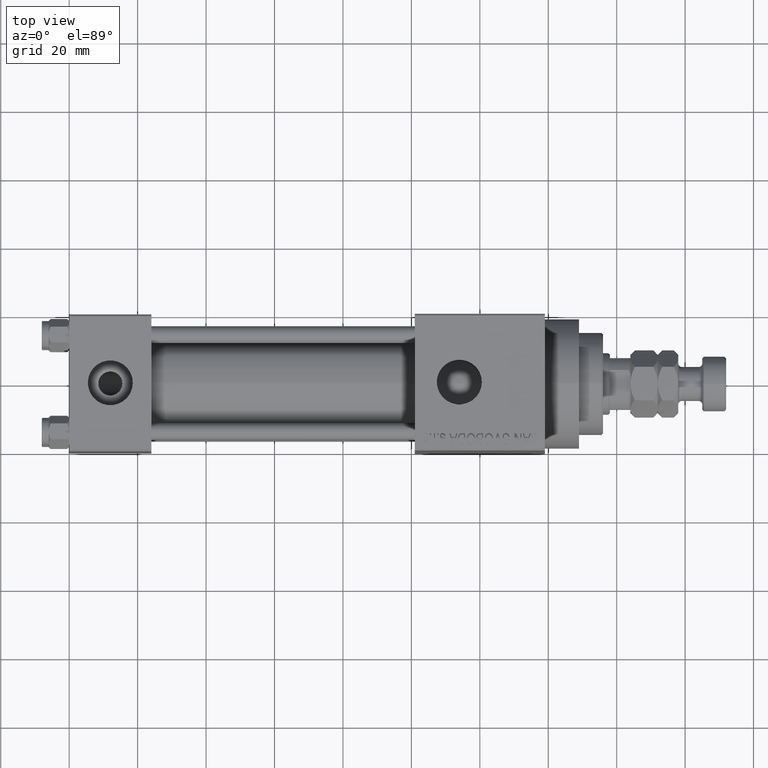
[diagram: clean part render]
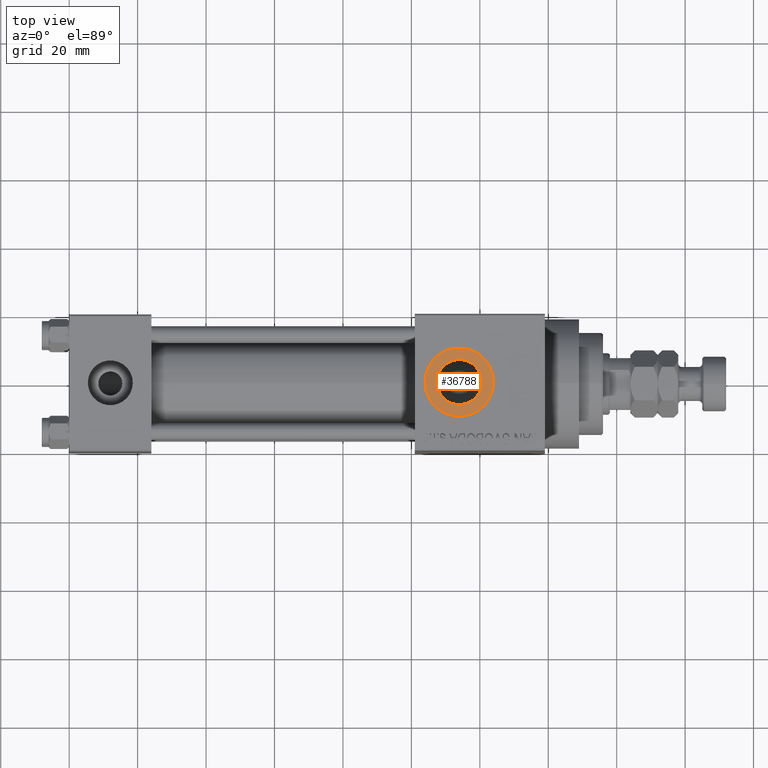
[diagram: same view with one face highlighted and labeled with its STEP entity id]
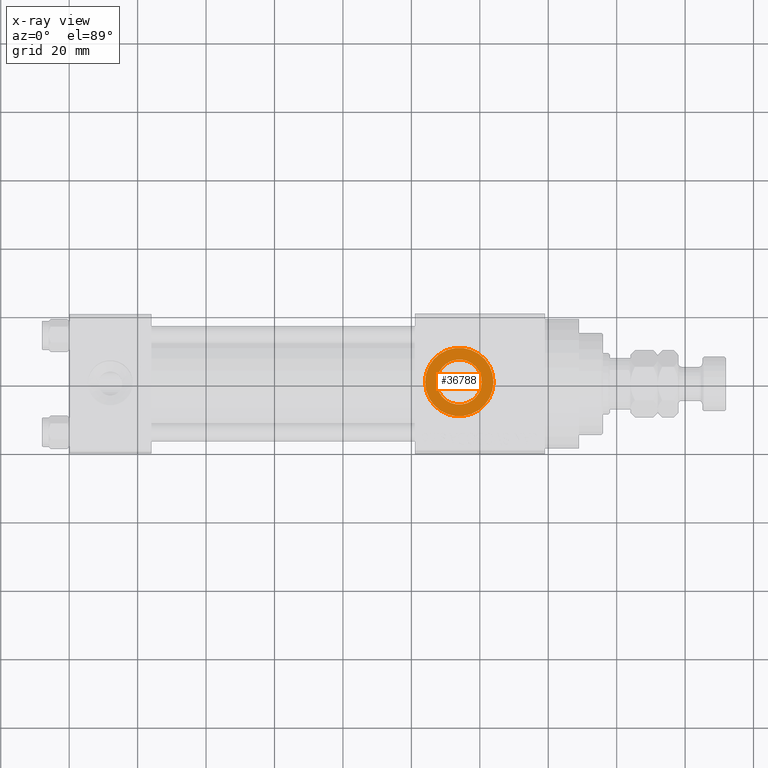
[diagram: x-ray of the same camera — body ghosted, the highlighted face saturated]
A machine part, top view. The second image highlights one B-rep face of the part: STEP entity #36788.
The next image is the same camera in x-ray: the body ghosted, the highlighted face saturated — about 0% of this face is hidden behind the body in this view.
In plain terms, the highlighted planar face has unit normal (0, 0, 1).
Its self-contained STEP definition (entity closure, byte-faithful):
#369 = DIRECTION ( 'NONE',  ( 1.000000000000000000, 0.000000000000000000, 0.000000000000000000 ) ) ;
#384 = CARTESIAN_POINT ( 'NONE',  ( 104.0000000000000000, -4.326468323978428854E-15, 31.80000000000000071 ) ) ;
#960 = EDGE_LOOP ( 'NONE', ( #45547, #16377 ) ) ;
#1799 = FACE_BOUND ( 'NONE', #960, .T. ) ;
#2567 = CIRCLE ( 'NONE', #19804, 10.00000000000000888 ) ;
#6511 = DIRECTION ( 'NONE',  ( 1.000000000000000000, 0.000000000000000000, 0.000000000000000000 ) ) ;
#9196 = DIRECTION ( 'NONE',  ( 1.000000000000000000, 0.000000000000000000, -0.000000000000000000 ) ) ;
#10118 = DIRECTION ( 'NONE',  ( 0.000000000000000000, 0.000000000000000000, 1.000000000000000000 ) ) ;
#12419 = ORIENTED_EDGE ( 'NONE', *, *, #31586, .T. ) ;
#12926 = VERTEX_POINT ( 'NONE', #48080 ) ;
#13041 = DIRECTION ( 'NONE',  ( 0.000000000000000000, 0.000000000000000000, 1.000000000000000000 ) ) ;
#15867 = ORIENTED_EDGE ( 'NONE', *, *, #47693, .T. ) ;
#16377 = ORIENTED_EDGE ( 'NONE', *, *, #21877, .T. ) ;
#16973 = CARTESIAN_POINT ( 'NONE',  ( 114.0000000000000000, -5.551115123125782702E-15, 31.80000000000000071 ) ) ;
#17030 = CARTESIAN_POINT ( 'NONE',  ( 114.0000000000000000, -5.551115123125782702E-15, 31.80000000000000071 ) ) ;
#17983 = AXIS2_PLACEMENT_3D ( 'NONE', #19591, #34145, #369 ) ;
#18526 = VERTEX_POINT ( 'NONE', #384 ) ;
#18795 = CIRCLE ( 'NONE', #17983, 6.580000000000002736 ) ;
#19163 = AXIS2_PLACEMENT_3D ( 'NONE', #42961, #31878, #9196 ) ;
#19591 = CARTESIAN_POINT ( 'NONE',  ( 114.0000000000000000, -5.551115123125782702E-15, 31.80000000000000071 ) ) ;
#19804 = AXIS2_PLACEMENT_3D ( 'NONE', #16973, #13041, #23646 ) ;
#20958 = CARTESIAN_POINT ( 'NONE',  ( 124.0000000000000142, -5.551115123125782702E-15, 31.80000000000000071 ) ) ;
#21877 = EDGE_CURVE ( 'NONE', #12926, #37832, #18795, .T. ) ;
#23646 = DIRECTION ( 'NONE',  ( 1.000000000000000000, 0.000000000000000000, 0.000000000000000000 ) ) ;
#24487 = PLANE ( 'NONE',  #19163 ) ;
#26625 = EDGE_LOOP ( 'NONE', ( #15867, #12419 ) ) ;
#27206 = DIRECTION ( 'NONE',  ( 1.000000000000000000, 0.000000000000000000, 0.000000000000000000 ) ) ;
#27933 = FACE_OUTER_BOUND ( 'NONE', #26625, .T. ) ;
#28458 = DIRECTION ( 'NONE',  ( -0.000000000000000000, -0.000000000000000000, -1.000000000000000000 ) ) ;
#30123 = CIRCLE ( 'NONE', #42708, 6.580000000000002736 ) ;
#31586 = EDGE_CURVE ( 'NONE', #18526, #39305, #2567, .T. ) ;
#31878 = DIRECTION ( 'NONE',  ( 0.000000000000000000, 0.000000000000000000, 1.000000000000000000 ) ) ;
#34145 = DIRECTION ( 'NONE',  ( -0.000000000000000000, -0.000000000000000000, -1.000000000000000000 ) ) ;
#34607 = EDGE_CURVE ( 'NONE', #37832, #12926, #30123, .T. ) ;
#36788 = ADVANCED_FACE ( 'NONE', ( #1799, #27933 ), #24487, .T. ) ;
#37832 = VERTEX_POINT ( 'NONE', #47197 ) ;
#39305 = VERTEX_POINT ( 'NONE', #20958 ) ;
#40280 = CARTESIAN_POINT ( 'NONE',  ( 114.0000000000000000, -5.551115123125782702E-15, 31.80000000000000071 ) ) ;
#42004 = CIRCLE ( 'NONE', #46769, 10.00000000000000888 ) ;
#42708 = AXIS2_PLACEMENT_3D ( 'NONE', #40280, #28458, #6511 ) ;
#42961 = CARTESIAN_POINT ( 'NONE',  ( 114.0000000000000000, -5.551115123125782702E-15, 31.80000000000000071 ) ) ;
#45547 = ORIENTED_EDGE ( 'NONE', *, *, #34607, .T. ) ;
#46769 = AXIS2_PLACEMENT_3D ( 'NONE', #17030, #10118, #27206 ) ;
#47197 = CARTESIAN_POINT ( 'NONE',  ( 107.4200000000000017, -5.551115123125782702E-15, 31.80000000000000071 ) ) ;
#47693 = EDGE_CURVE ( 'NONE', #39305, #18526, #42004, .T. ) ;
#48080 = CARTESIAN_POINT ( 'NONE',  ( 120.5800000000000125, -4.745297529286824449E-15, 31.80000000000000071 ) ) ;